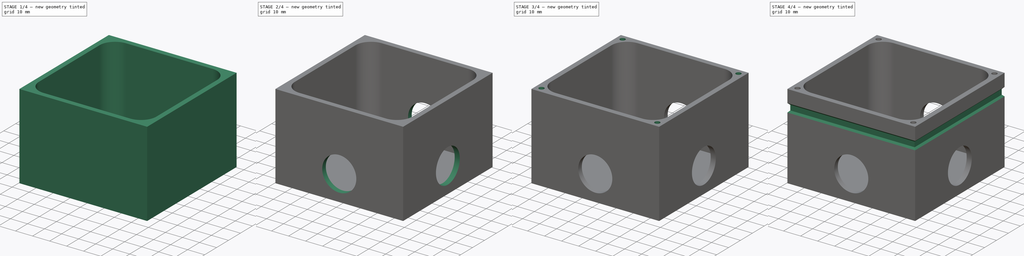
[diagram: build sequence overview — one tinted view per stage of 4, left to right]
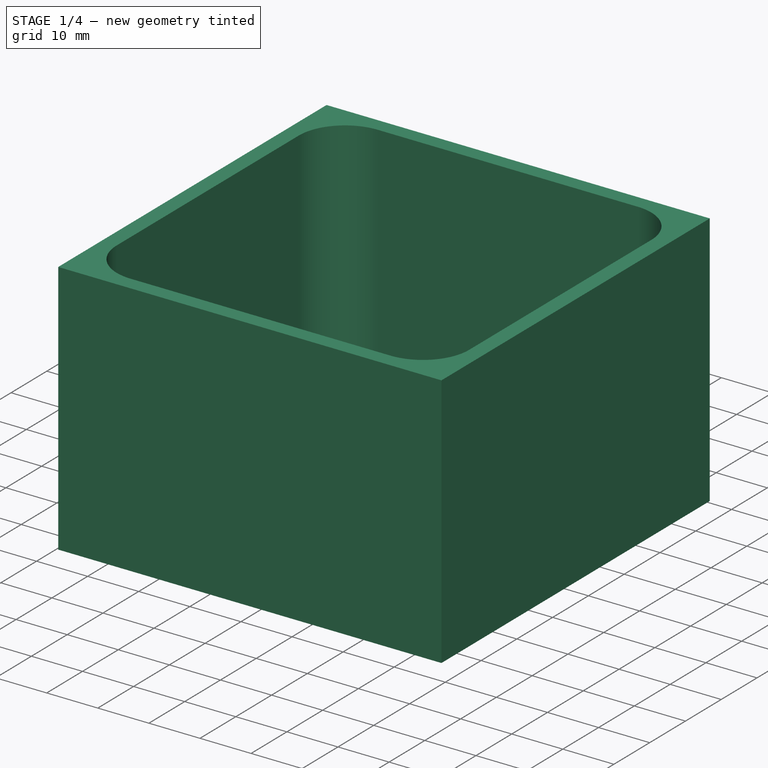
[diagram: stage 1 of 4 — iso view after this stage's code; geometry added in this stage tinted green]
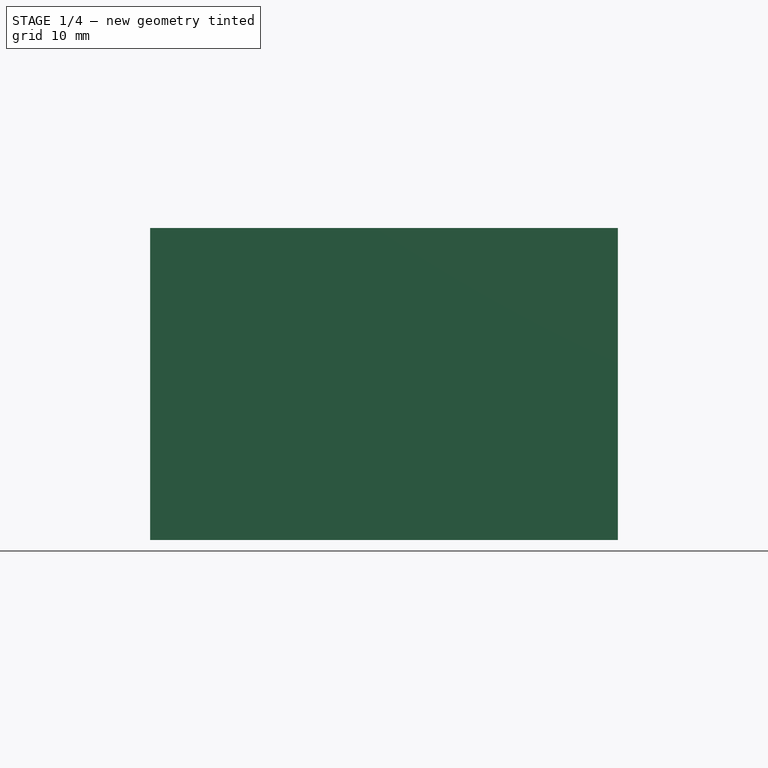
[diagram: stage 1 of 4 — front view after this stage's code; geometry added in this stage tinted green]
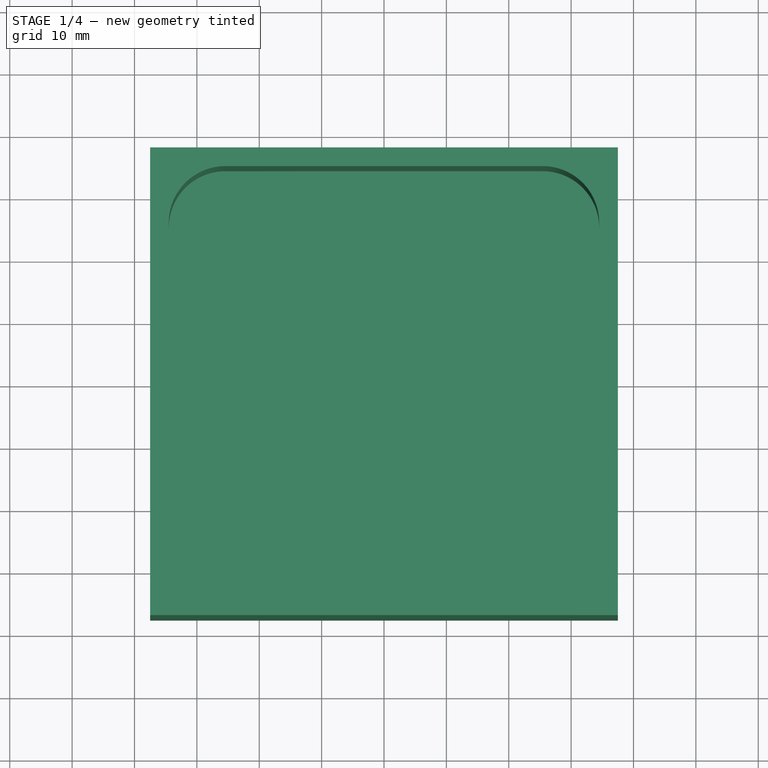
[diagram: stage 1 of 4 — top view after this stage's code; geometry added in this stage tinted green]
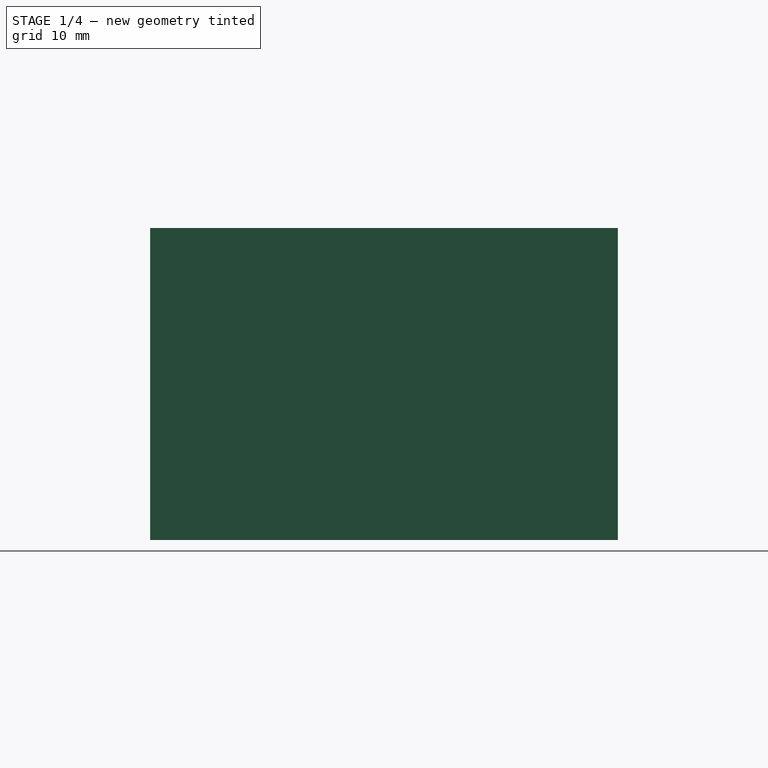
[diagram: stage 1 of 4 — right view after this stage's code; geometry added in this stage tinted green]
FCSTD DOCUMENT  (FreeCAD 0.21R33771 (Git))
Label: Sensor_box
License: All rights reserved
LicenseURL: http://en.wikipedia.org/wiki/All_rights_reserved
objects: Sketcher::SketchObject×10, PartDesign::Pocket×7, PartDesign::Pad×1, PartDesign::Hole×1, PartDesign::Body×1
note: 29 computed .brp shape members not serialized (recipe doc carries the construction recipe); baked Part::Feature solids carry a one-line shape summary decoded from their .brp

FEATURE [Sketcher::SketchObject] Sketch
  FullyConstrained = true
  sketch-geometry (9):
    g0: LineSegment StartX=-37.5 StartY=-35.5 StartZ=0 EndX=-37.5 EndY=35.5 EndZ=0
    g1: LineSegment StartX=-35.5 StartY=37.5 StartZ=0 EndX=35.5 EndY=37.5 EndZ=0
    g2: LineSegment StartX=37.5 StartY=35.5 StartZ=0 EndX=37.5 EndY=-35.5 EndZ=0
    g3: LineSegment StartX=35.5 StartY=-37.5 StartZ=0 EndX=-35.5 EndY=-37.5 EndZ=0
    g4: GeomPoint X=0 Y=0 Z=0
    g5: ArcOfCircle CenterX=-35.5 CenterY=35.5 CenterZ=0 NormalX=0 NormalY=0 NormalZ=1 AngleXU=0 Radius=2 StartAngle=1.5708 EndAngle=3.14159
    g6: ArcOfCircle CenterX=35.5 CenterY=35.5 CenterZ=0 NormalX=0 NormalY=0 NormalZ=1 AngleXU=0 Radius=2 StartAngle=-1.8e-15 EndAngle=1.5708
    g7: ArcOfCircle CenterX=-35.5 CenterY=-35.5 CenterZ=0 NormalX=0 NormalY=0 NormalZ=1 AngleXU=0 Radius=2 StartAngle=3.14159 EndAngle=4.71239
    g8: ArcOfCircle CenterX=35.5 CenterY=-35.5 CenterZ=0 NormalX=0 NormalY=0 NormalZ=1 AngleXU=0 Radius=2 StartAngle=4.71239 EndAngle=6.28319
  constraints (21):
    c: Horizontal(g1)
    c: Horizontal(g3)
    c: Vertical(g0)
    c: Vertical(g2)
    c: Coincident(g4,g-1)
    c: Tangent(g0,g5) = 1.5708
    c: Tangent(g1,g5) = 1.5708
    c: Tangent(g1,g6) = 1.5708
    c: Tangent(g2,g6) = 1.5708
    c: Tangent(g0,g7) = 1.5708
    c: Tangent(g3,g7) = 1.5708
    c: Tangent(g2,g8) = 1.5708
    c: Tangent(g3,g8) = 1.5708
    c: DistanceX(g0,g2) = 75
    c: DistanceY(g3,g1) = 75
    c: DistanceY(g3,g4) = 37.5
    c: DistanceX(g4,g2) = 37.5
    c: Equal(g7,g8)
    c: Equal(g7,g6)
    c: Equal(g7,g5)
    c: Radius(g7) = 2
FEATURE [PartDesign::Pad] Pad
  Direction = (0,0,1)
  Length = 50
  Length2 = 10
  Profile = -> Sketch
  ReferenceAxis = -> Sketch [N_Axis]
  Type = 0
FEATURE [Sketcher::SketchObject] Sketch001
  ExternalGeometry = -> [Pad]
  FullyConstrained = true
  MapMode = 5
  Placement = pos=(0,0,50) rot=(0,0,1;0rad)
  Support = -> [Pad]
  sketch-geometry (11):
    g0: LineSegment StartX=-34.5 StartY=-25.4289 StartZ=0 EndX=-34.5 EndY=25.4289 EndZ=0
    g1: LineSegment StartX=-25.4289 StartY=34.5 StartZ=0 EndX=25.4289 EndY=34.5 EndZ=0
    g2: LineSegment StartX=34.5 StartY=25.4289 StartZ=0 EndX=34.5 EndY=-25.4289 EndZ=0
    g3: LineSegment StartX=25.4289 StartY=-34.5 StartZ=0 EndX=-25.4289 EndY=-34.5 EndZ=0
    g4: GeomPoint X=0 Y=0 Z=0
    g5: ArcOfCircle CenterX=-25.4289 CenterY=25.4289 CenterZ=0 NormalX=0 NormalY=0 NormalZ=1 AngleXU=0 Radius=9.07107 StartAngle=1.5708 EndAngle=3.14159
    g6: ArcOfCircle CenterX=25.4289 CenterY=25.4289 CenterZ=0 NormalX=0 NormalY=0 NormalZ=1 AngleXU=0 Radius=9.07107 StartAngle=0 EndAngle=1.5708
    g7: ArcOfCircle CenterX=-25.4289 CenterY=-25.4289 CenterZ=0 NormalX=0 NormalY=0 NormalZ=1 AngleXU=0 Radius=9.07107 StartAngle=3.14159 EndAngle=4.71239
    g8: ArcOfCircle CenterX=25.4289 CenterY=-25.4289 CenterZ=0 NormalX=0 NormalY=0 NormalZ=1 AngleXU=0 Radius=9.07107 StartAngle=4.71239 EndAngle=6.28319
    g9: LineSegment StartX=-37.5 StartY=-37.5 StartZ=0 EndX=-25.4289 EndY=-25.4289 EndZ=0
    g10: GeomPoint X=-31.8431 Y=-31.8431 Z=0
  constraints (25):
    c: Horizontal(g1)
    c: Horizontal(g3)
    c: Vertical(g0)
    c: Vertical(g2)
    c: Coincident(g4,g-1)
    c: Tangent(g0,g5) = 1.5708
    c: Tangent(g1,g5) = 1.5708
    c: Tangent(g1,g6) = 1.5708
    c: Tangent(g2,g6) = 1.5708
    c: Tangent(g0,g7) = 1.5708
    c: Tangent(g3,g7) = 1.5708
    c: Tangent(g2,g8) = 1.5708
    c: Tangent(g3,g8) = 1.5708
    c: Coincident(g9,g-6)
    c: Coincident(g9,g7)
    c: PointOnObject(g10,g7)
    c: Distance(g9,g10) = 8
    c: Equal(g7,g8)
    c: Equal(g8,g6)
    c: Equal(g6,g5)
    c: PointOnObject(g10,g9)
    c: DistanceX(g9,g0) = 3
    c: DistanceY(g9,g3) = 3
    c: DistanceY(g1,g-4) = 3
    c: DistanceX(g2,g-5) = 3
FEATURE [PartDesign::Pocket] Pocket
  BaseFeature = -> Pad
  Direction = (0,0,-1)
  Length = 47
  Length2 = 5
  Profile = -> Sketch001
  ReferenceAxis = -> Sketch001 [N_Axis]
  Type = 0
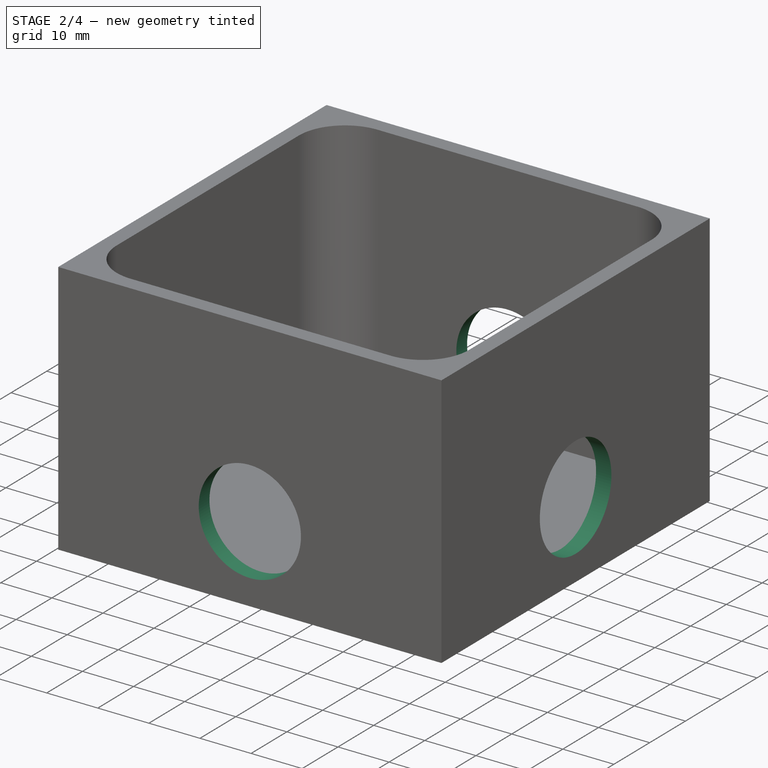
[diagram: stage 2 of 4 — iso view after this stage's code; geometry added in this stage tinted green]
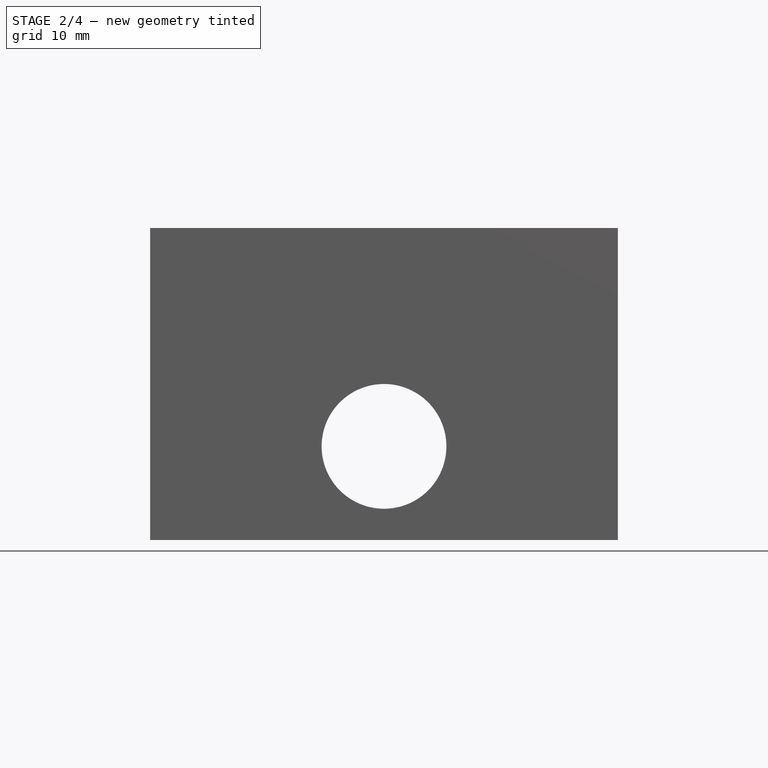
[diagram: stage 2 of 4 — front view after this stage's code; geometry added in this stage tinted green]
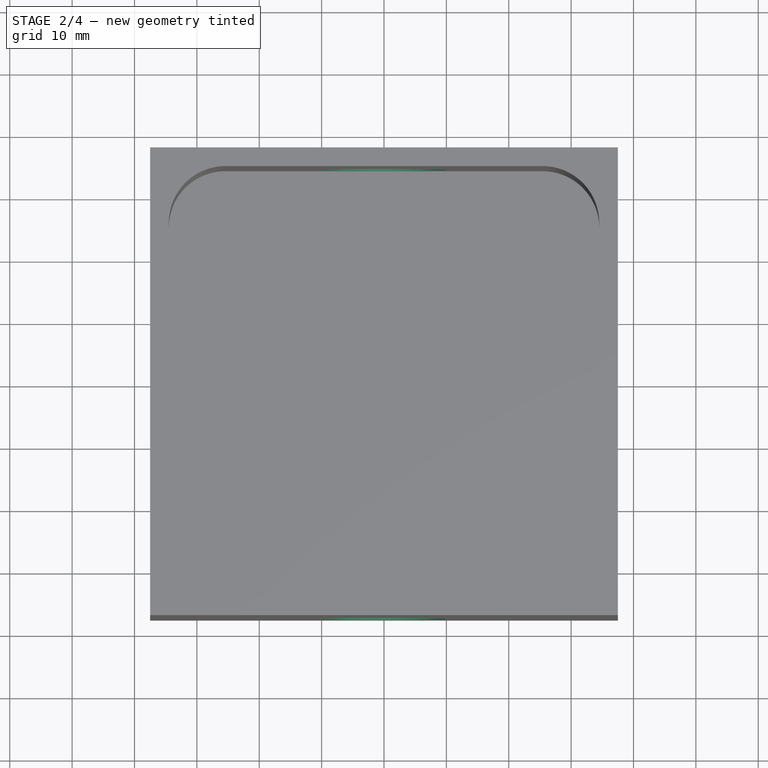
[diagram: stage 2 of 4 — top view after this stage's code; geometry added in this stage tinted green]
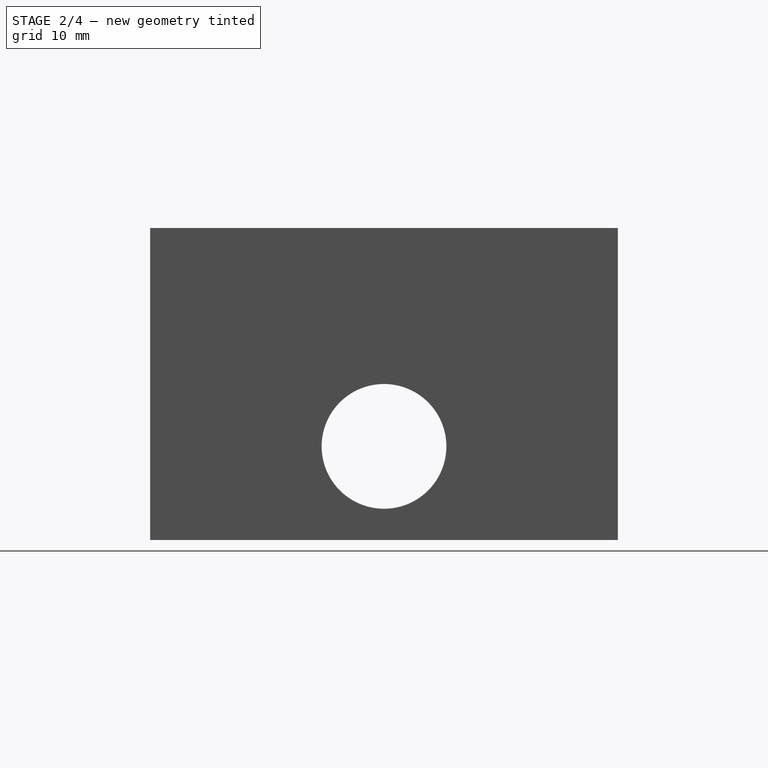
[diagram: stage 2 of 4 — right view after this stage's code; geometry added in this stage tinted green]
FEATURE [Sketcher::SketchObject] Sketch002
  ExternalGeometry = -> [Pocket]
  FullyConstrained = true
  MapMode = 5
  Placement = pos=(37.5,0,0) rot=(0.57735,0.57735,0.57735;2.0944rad)
  Support = -> [Pocket]
  sketch-geometry (1):
    g0: Circle CenterX=0 CenterY=15 CenterZ=0 NormalX=0 NormalY=0 NormalZ=1 AngleXU=0 Radius=10
  constraints (3):
    c: PointOnObject(g0,g-2)
    c: Radius(g0) = 10
    c: DistanceY(g-1,g0) = 15
FEATURE [PartDesign::Pocket] Pocket001
  BaseFeature = -> Pocket
  Direction = (-1,0,0)
  Length = 5
  Length2 = 5
  Profile = -> Sketch002
  ReferenceAxis = -> Sketch002 [N_Axis]
  Type = 1
FEATURE [Sketcher::SketchObject] Sketch003
  FullyConstrained = true
  MapMode = 5
  Placement = pos=(0,37.5,0) rot=(0,0.707107,0.707107;3.14159rad)
  Support = -> [Pocket001]
  sketch-geometry (1):
    g0: Circle CenterX=0 CenterY=15 CenterZ=0 NormalX=0 NormalY=0 NormalZ=1 AngleXU=0 Radius=10
  constraints (3):
    c: PointOnObject(g0,g-2)
    c: Radius(g0) = 10
    c: DistanceY(g-1,g0) = 15
FEATURE [PartDesign::Pocket] Pocket002
  BaseFeature = -> Pocket001
  Direction = (0,-1,2e-16)
  Length = 5
  Length2 = 5
  Profile = -> Sketch003
  ReferenceAxis = -> Sketch003 [N_Axis]
  Type = 1
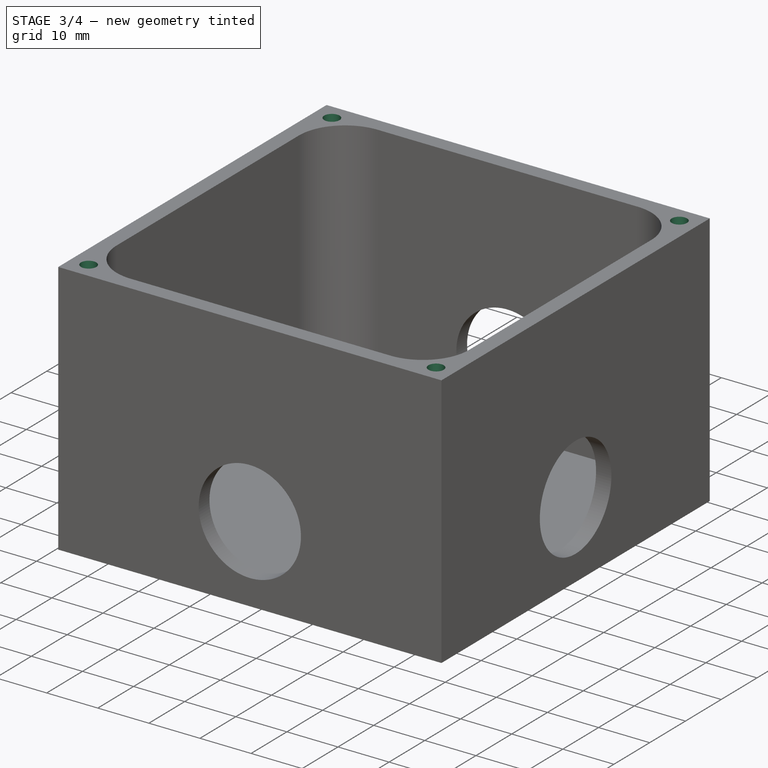
[diagram: stage 3 of 4 — iso view after this stage's code; geometry added in this stage tinted green]
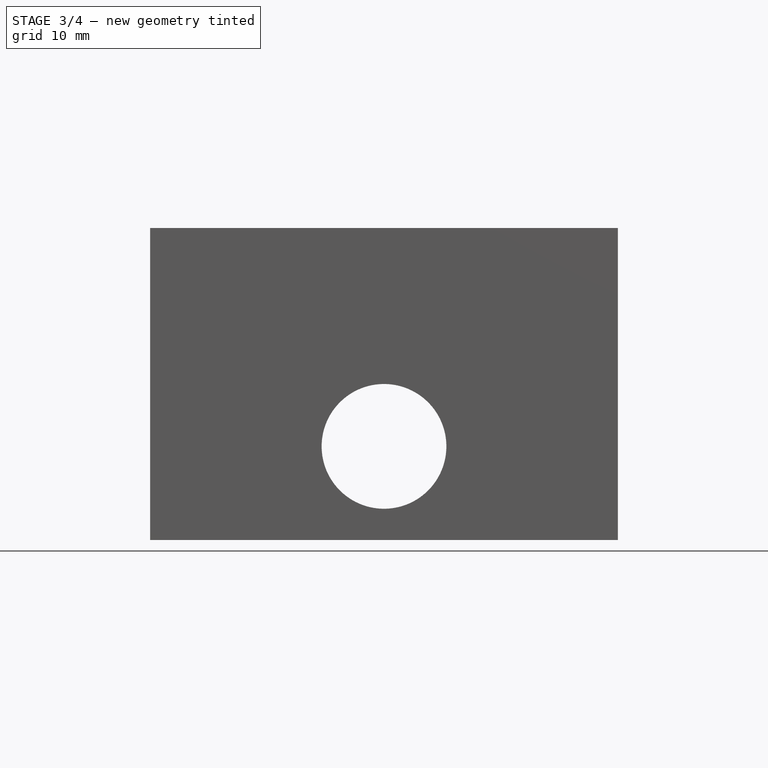
[diagram: stage 3 of 4 — front view after this stage's code; geometry added in this stage tinted green]
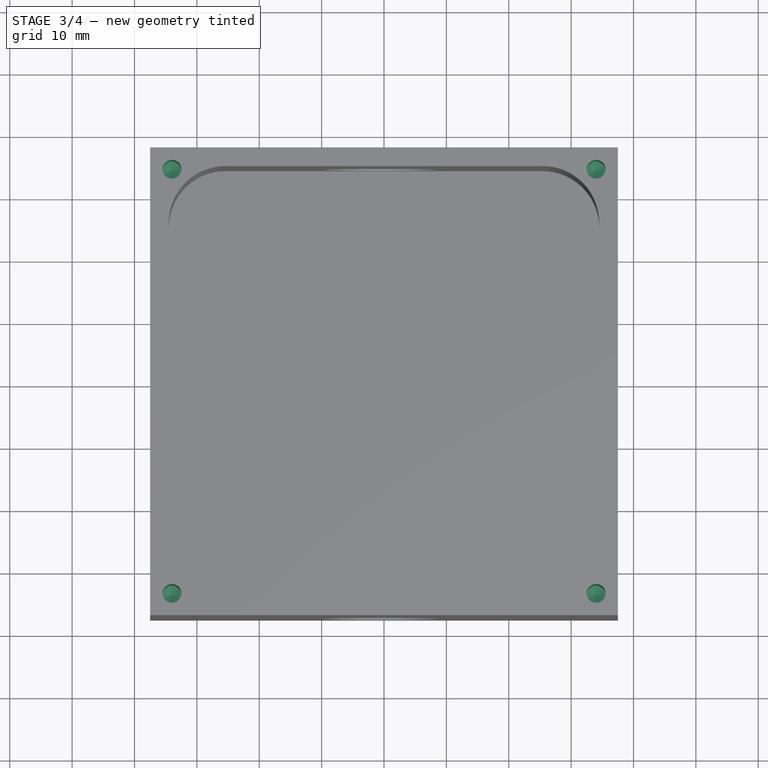
[diagram: stage 3 of 4 — top view after this stage's code; geometry added in this stage tinted green]
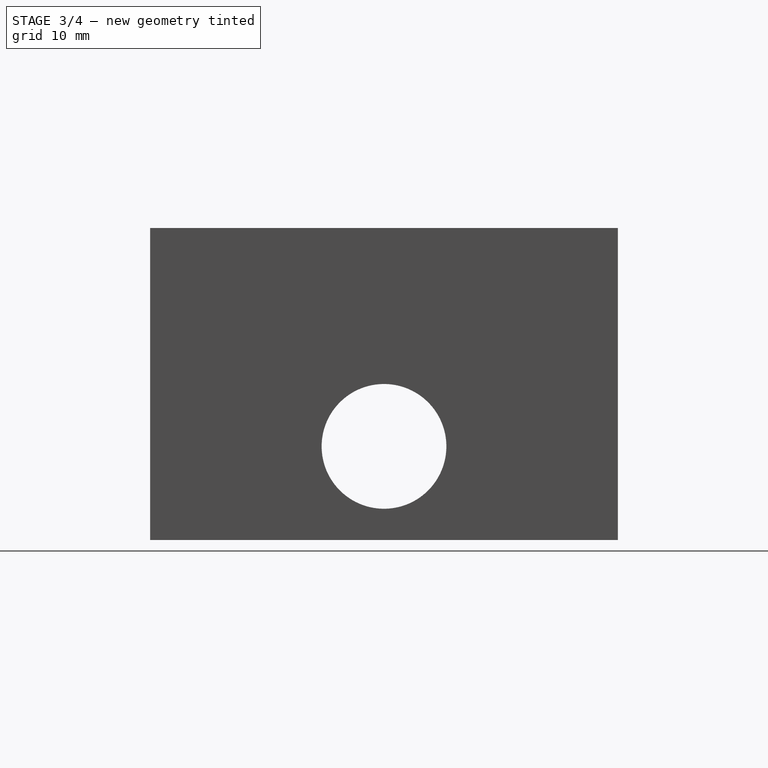
[diagram: stage 3 of 4 — right view after this stage's code; geometry added in this stage tinted green]
FEATURE [Sketcher::SketchObject] Sketch004
  ExternalGeometry = -> [Pocket002]
  FullyConstrained = true
  MapMode = 5
  Placement = pos=(0,0,50) rot=(0,0,1;0rad)
  Support = -> [Pocket002]
  sketch-geometry (4):
    g0: Circle CenterX=-34 CenterY=34 CenterZ=0 NormalX=0 NormalY=0 NormalZ=1 AngleXU=0 Radius=1
    g1: Circle CenterX=-34 CenterY=-34 CenterZ=0 NormalX=0 NormalY=0 NormalZ=1 AngleXU=0 Radius=1
    g2: Circle CenterX=34 CenterY=34 CenterZ=0 NormalX=0 NormalY=0 NormalZ=1 AngleXU=0 Radius=1
    g3: Circle CenterX=34 CenterY=-34 CenterZ=0 NormalX=0 NormalY=0 NormalZ=1 AngleXU=0 Radius=1
  constraints (12):
    c: DistanceX(g-4,g0) = 3.5
    c: DistanceY(g0,g-4) = 3.5
    c: Radius(g0) = 1
    c: Radius(g1) = 1
    c: Radius(g2) = 1
    c: Radius(g3) = 1
    c: DistanceX(g2,g-4) = 3.5
    c: DistanceY(g2,g-4) = 3.5
    c: DistanceX(g3,g-7) = 3.5
    c: DistanceY(g-7,g3) = 3.5
    c: DistanceX(g-7,g1) = 3.5
    c: DistanceY(g-7,g1) = 3.5
FEATURE [PartDesign::Hole] Hole
  BaseFeature = -> Pocket002
  CustomThreadClearance = 0
  Depth = 15
  DepthType = 0
  Diameter = 3
  DrillForDepth = false
  DrillPoint = 1
  DrillPointAngle = 118
  HoleCutCountersinkAngle = 90
  HoleCutCustomValues = false
  HoleCutDepth = 0
  HoleCutDiameter = 6.1
  HoleCutType = 0
  ModelThread = false
  Profile = -> Sketch004
  Tapered = false
  TaperedAngle = 90
  ThreadClass = 0
  ThreadDepth = 15
  ThreadDepthType = 0
  ThreadDirection = 0
  ThreadFit = 0
  ThreadSize = 0
  ThreadType = 0
  Threaded = false
  UseCustomThreadClearance = false
FEATURE [Sketcher::SketchObject] Sketch005
  ExternalGeometry = -> [Hole]
  FullyConstrained = true
  MapMode = 5
  Placement = pos=(0,37.5,0) rot=(0,0.707107,0.707107;3.14159rad)
  Support = -> [Hole]
  sketch-geometry (4):
    g0: LineSegment StartX=-37.5 StartY=37.5 StartZ=0 EndX=37.5 EndY=37.5 EndZ=0
    g1: LineSegment StartX=37.5 StartY=37.5 StartZ=0 EndX=37.5 EndY=42.5 EndZ=0
    g2: LineSegment StartX=37.5 StartY=42.5 StartZ=0 EndX=-37.5 EndY=42.5 EndZ=0
    g3: LineSegment StartX=-37.5 StartY=42.5 StartZ=0 EndX=-37.5 EndY=37.5 EndZ=0
  constraints (12):
    c: Coincident(g0,g1)
    c: Coincident(g1,g2)
    c: Coincident(g2,g3)
    c: Coincident(g3,g0)
    c: Horizontal(g0)
    c: Horizontal(g2)
    c: Vertical(g1)
    c: Vertical(g3)
    c: DistanceY(g0,g-5) = 12.5
    c: DistanceY(g0,g1) = 5
    c: PointOnObject(g1,g-4)
    c: PointOnObject(g2,g-3)
FEATURE [PartDesign::Pocket] Pocket003
  BaseFeature = -> Hole
  Direction = (0,-1,2e-16)
  Length = 1
  Length2 = 5
  Profile = -> Sketch005
  ReferenceAxis = -> Sketch005 [N_Axis]
  TaperAngle = -45
  Type = 0
FEATURE [Sketcher::SketchObject] Sketch006
  ExternalGeometry = -> [Pocket003]
  FullyConstrained = true
  MapMode = 5
  Placement = pos=(-37.5,0,0) rot=(0.57735,-0.57735,-0.57735;2.0944rad)
  Support = -> [Pocket003]
  sketch-geometry (4):
    g0: LineSegment StartX=-37.5 StartY=37.5 StartZ=0 EndX=37.5 EndY=37.5 EndZ=0
    g1: LineSegment StartX=37.5 StartY=37.5 StartZ=0 EndX=37.5 EndY=42.5 EndZ=0
    g2: LineSegment StartX=37.5 StartY=42.5 StartZ=0 EndX=-37.5 EndY=42.5 EndZ=0
    g3: LineSegment StartX=-37.5 StartY=42.5 StartZ=0 EndX=-37.5 EndY=37.5 EndZ=0
  constraints (10):
    c: Coincident(g0,g1)
    c: Coincident(g1,g2)
    c: Coincident(g2,g3)
    c: Coincident(g3,g0)
    c: Horizontal(g0)
    c: Horizontal(g2)
    c: Vertical(g1)
    c: Coincident(g0,g-3)
    c: PointOnObject(g1,g-5)
    c: Coincident(g2,g-4)
FEATURE [Sketcher::SketchObject] Sketch007
  ExternalGeometry = -> [Pocket003,Sketch006]
  FullyConstrained = true
  MapMode = 5
  Placement = pos=(0,-37.5,0) rot=(1,0,0;1.5708rad)
  Support = -> [Pocket003]
  sketch-geometry (4):
    g0: LineSegment StartX=-37.5 StartY=37.5 StartZ=0 EndX=37.5 EndY=37.5 EndZ=0
    g1: LineSegment StartX=37.5 StartY=37.5 StartZ=0 EndX=37.5 EndY=42.5 EndZ=0
    g2: LineSegment StartX=37.5 StartY=42.5 StartZ=0 EndX=-37.5 EndY=42.5 EndZ=0
    g3: LineSegment StartX=-37.5 StartY=42.5 StartZ=0 EndX=-37.5 EndY=37.5 EndZ=0
  constraints (10):
    c: Coincident(g0,g1)
    c: Coincident(g1,g2)
    c: Coincident(g2,g3)
    c: Coincident(g3,g0)
    c: Horizontal(g0)
    c: Horizontal(g2)
    c: Vertical(g1)
    c: Coincident(g0,g-4)
    c: PointOnObject(g1,g-6)
    c: Coincident(g2,g-5)
FEATURE [Sketcher::SketchObject] Sketch008
  ExternalGeometry = -> [Pocket003,Sketch007]
  FullyConstrained = true
  MapMode = 5
  Placement = pos=(37.5,0,0) rot=(0.57735,0.57735,0.57735;2.0944rad)
  Support = -> [Pocket003]
  sketch-geometry (4):
    g0: LineSegment StartX=-37.5 StartY=37.5 StartZ=0 EndX=37.5 EndY=37.5 EndZ=0
    g1: LineSegment StartX=37.5 StartY=37.5 StartZ=0 EndX=37.5 EndY=42.5 EndZ=0
    g2: LineSegment StartX=37.5 StartY=42.5 StartZ=0 EndX=-37.5 EndY=42.5 EndZ=0
    g3: LineSegment StartX=-37.5 StartY=42.5 StartZ=0 EndX=-37.5 EndY=37.5 EndZ=0
  constraints (10):
    c: Coincident(g0,g1)
    c: Coincident(g1,g2)
    c: Coincident(g2,g3)
    c: Coincident(g3,g0)
    c: Horizontal(g0)
    c: Horizontal(g2)
    c: Vertical(g1)
    c: Vertical(g3)
    c: Coincident(g0,g-4)
    c: Coincident(g1,g-7)
FEATURE [PartDesign::Pocket] Pocket004
  BaseFeature = -> Pocket003
  Direction = (1,0,0)
  Length = 1
  Length2 = 5
  Profile = -> Sketch006
  ReferenceAxis = -> Sketch006 [N_Axis]
  TaperAngle = -45
  Type = 0
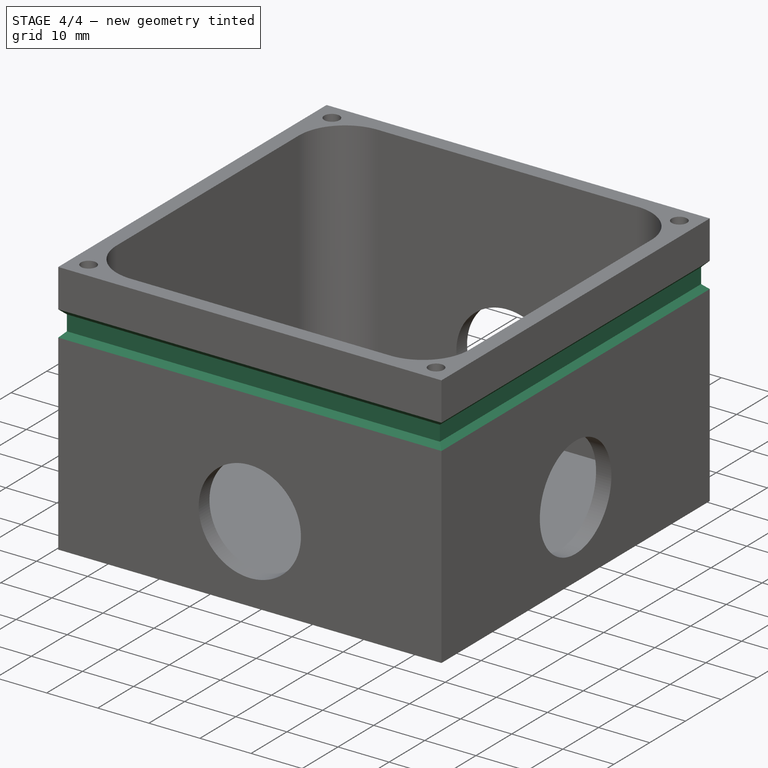
[diagram: stage 4 of 4 — iso view after this stage's code; geometry added in this stage tinted green]
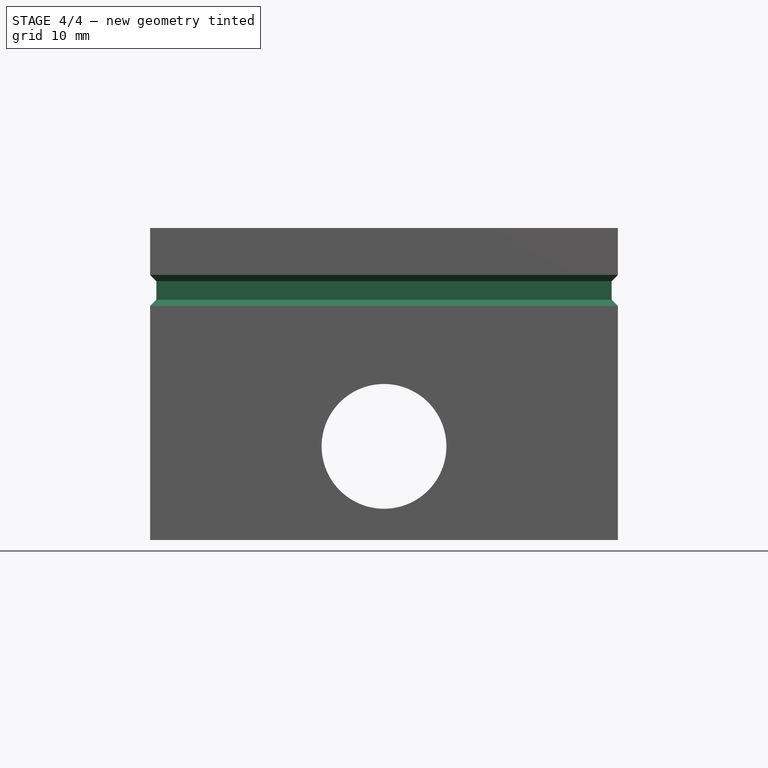
[diagram: stage 4 of 4 — front view after this stage's code; geometry added in this stage tinted green]
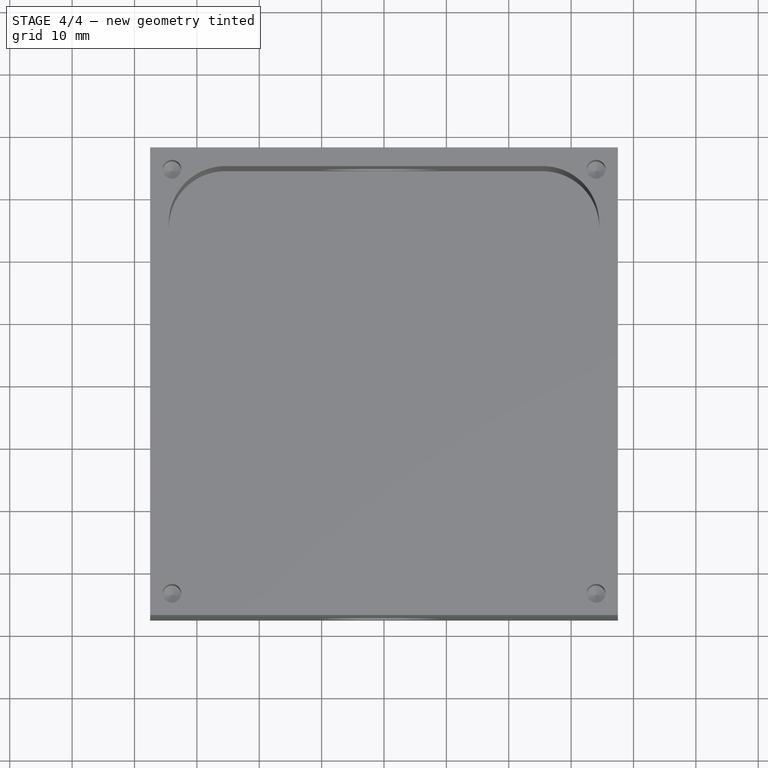
[diagram: stage 4 of 4 — top view after this stage's code; geometry added in this stage tinted green]
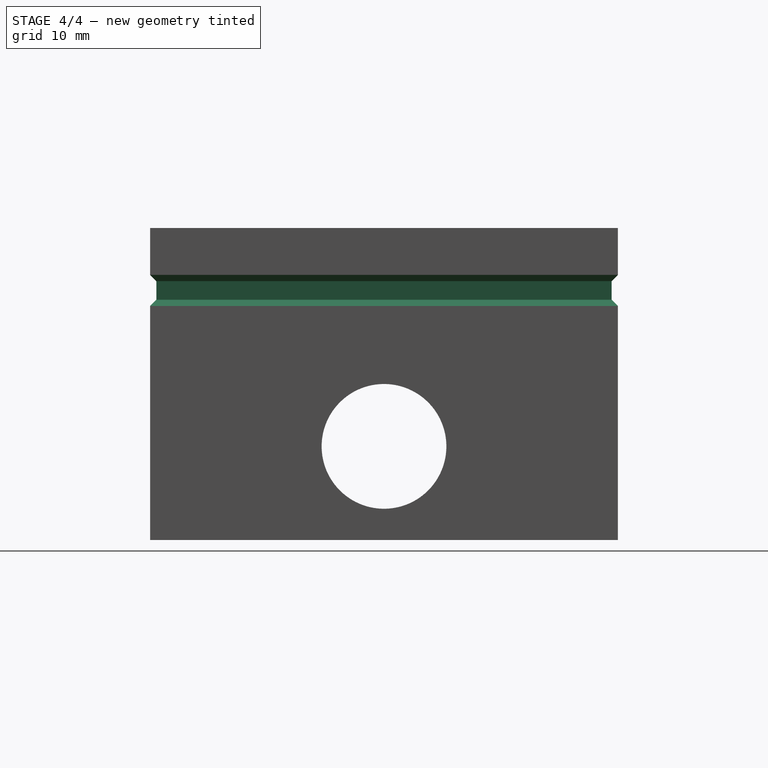
[diagram: stage 4 of 4 — right view after this stage's code; geometry added in this stage tinted green]
FEATURE [PartDesign::Pocket] Pocket005
  BaseFeature = -> Pocket004
  Direction = (-1,0,0)
  Length = 1
  Length2 = 5
  Profile = -> Sketch008
  ReferenceAxis = -> Sketch008 [N_Axis]
  TaperAngle = -45
  Type = 0
FEATURE [PartDesign::Pocket] Pocket006
  BaseFeature = -> Pocket005
  Direction = (0,1,-2e-16)
  Length = 1
  Length2 = 5
  Profile = -> Sketch007
  ReferenceAxis = -> Sketch007 [N_Axis]
  TaperAngle = -45
  Type = 0
FEATURE [PartDesign::Body] Body
  Group = -> [Sketch,Pad,Sketch001,Pocket,Sketch002,Pocket001,Sketch003,Pocket002,Sketch004,Hole,Sketch005,Pocket003,Sketch006,Sketch007,Sketch008,Pocket004,Pocket005,Pocket006]
  Origin = -> Origin
  Tip = -> Pocket006
FEATURE [Sketcher::SketchObject] Sketch009
  FullyConstrained = true
  MapMode = 5
  Placement = pos=(0,0,3) rot=(0,0,1;0rad)
  Support = -> [Pocket006]
  sketch-geometry (4):
    g0: GeomPoint X=0 Y=0 Z=0
    g1: LineSegment StartX=32 StartY=0 StartZ=0 EndX=-33 EndY=0 EndZ=0
    g2: LineSegment StartX=0 StartY=33 StartZ=0 EndX=0 EndY=-32 EndZ=0
    g3: Circle CenterX=0 CenterY=0 CenterZ=0 NormalX=0 NormalY=0 NormalZ=1 AngleXU=0 Radius=5
  constraints (11):
    c: Coincident(g0,g-1)
    c: PointOnObject(g1,g-1)
    c: PointOnObject(g1,g-1)
    c: PointOnObject(g2,g-2)
    c: PointOnObject(g2,g-2)
    c: DistanceX(g1,g1) = 65
    c: DistanceY(g2,g2) = 65
    c: DistanceX(g0,g1) = 32
    c: DistanceY(g2,g0) = 32
    c: Coincident(g3,g0)
    c: Radius(g3) = 5
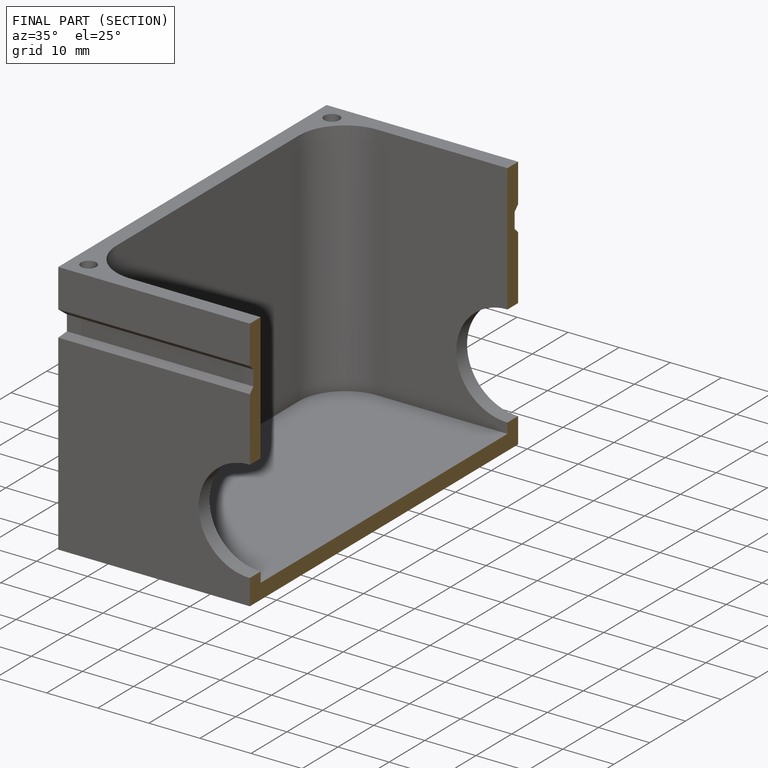
[diagram: finished part — half-section view (interior)]
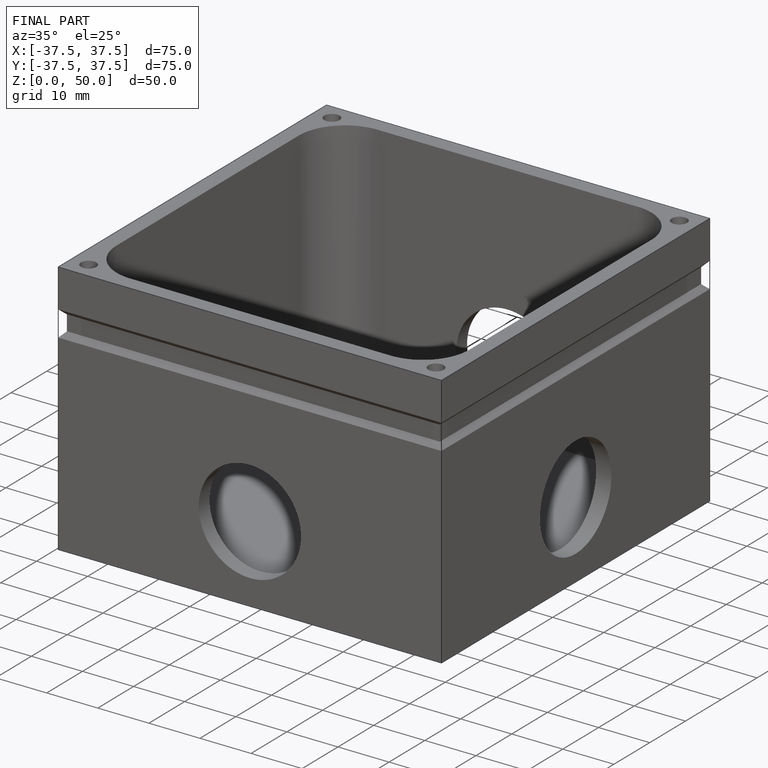
[diagram: finished part — iso view with bounding-box wireframe]
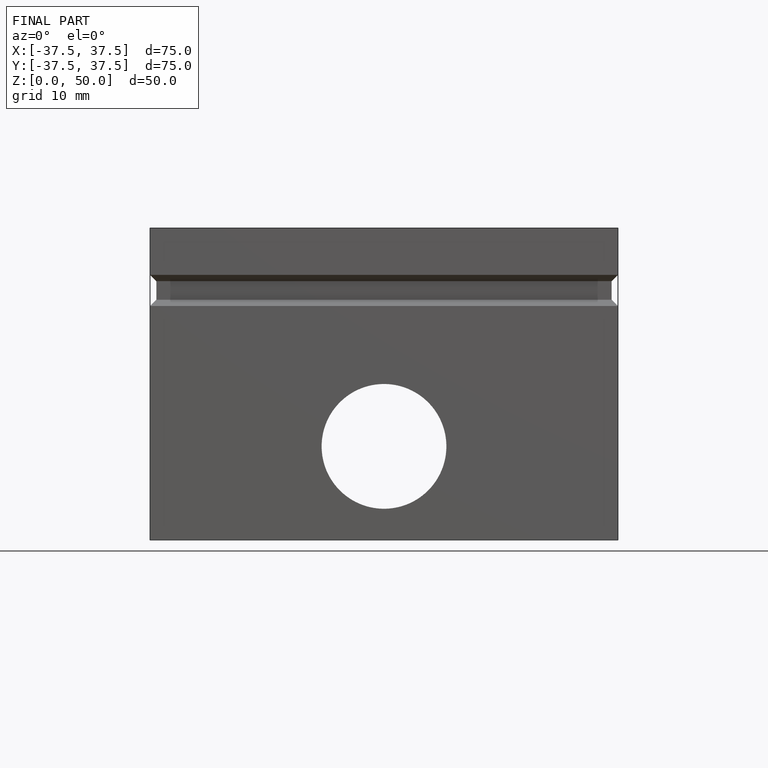
[diagram: finished part — front view with bounding-box wireframe]
